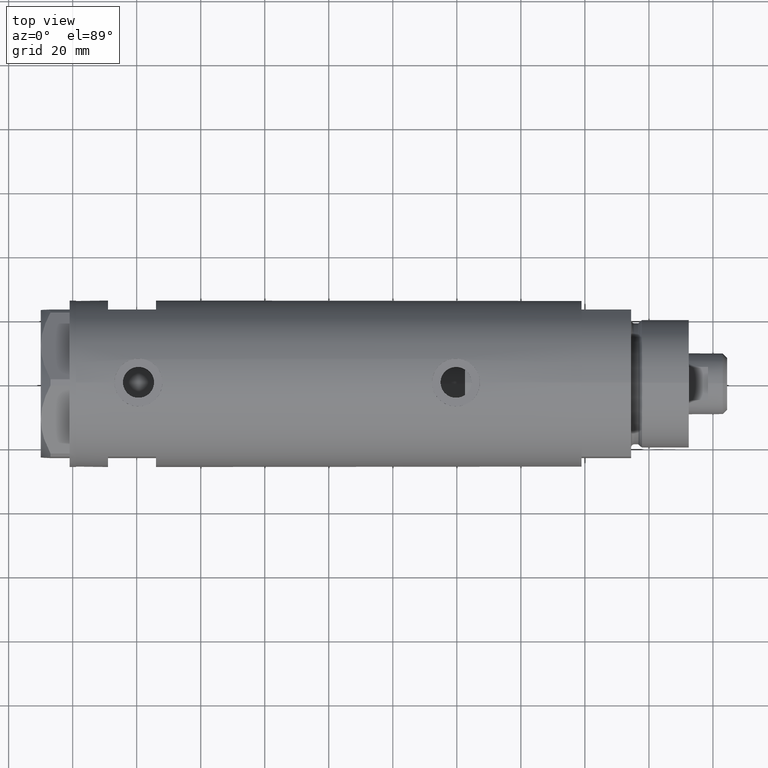
[diagram: clean part render]
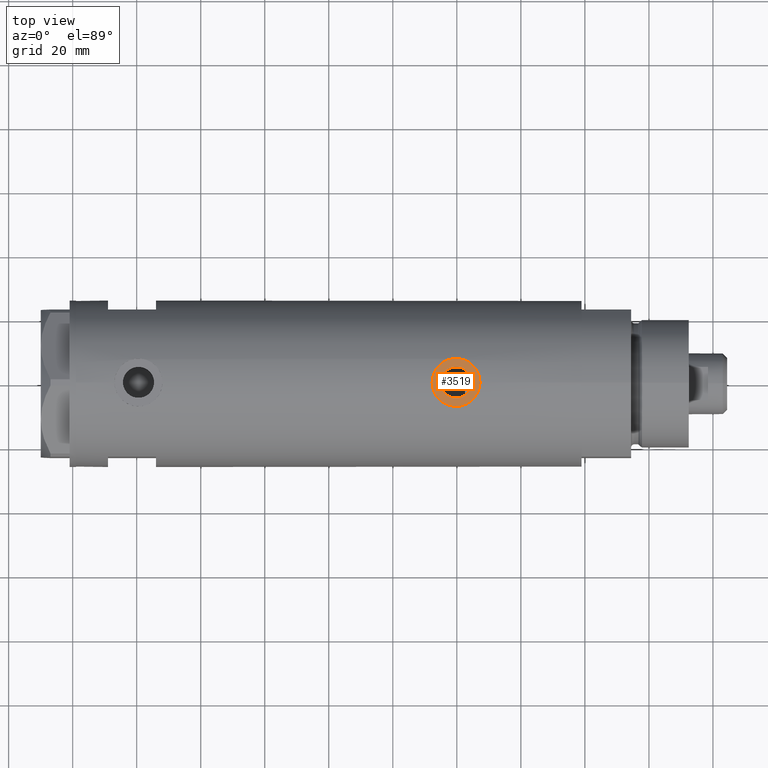
[diagram: same view with one face highlighted and labeled with its STEP entity id]
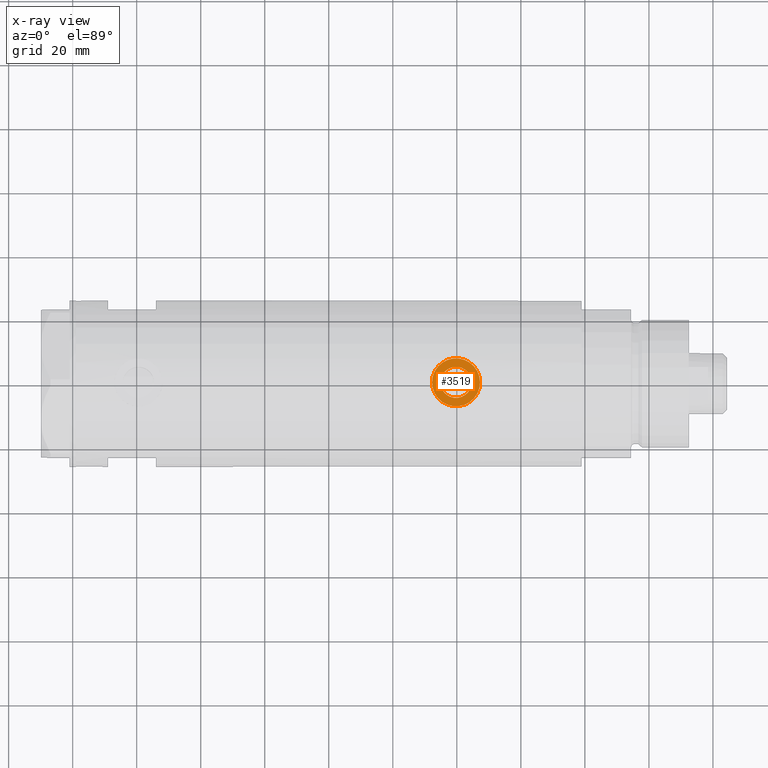
[diagram: x-ray of the same camera — body ghosted, the highlighted face saturated]
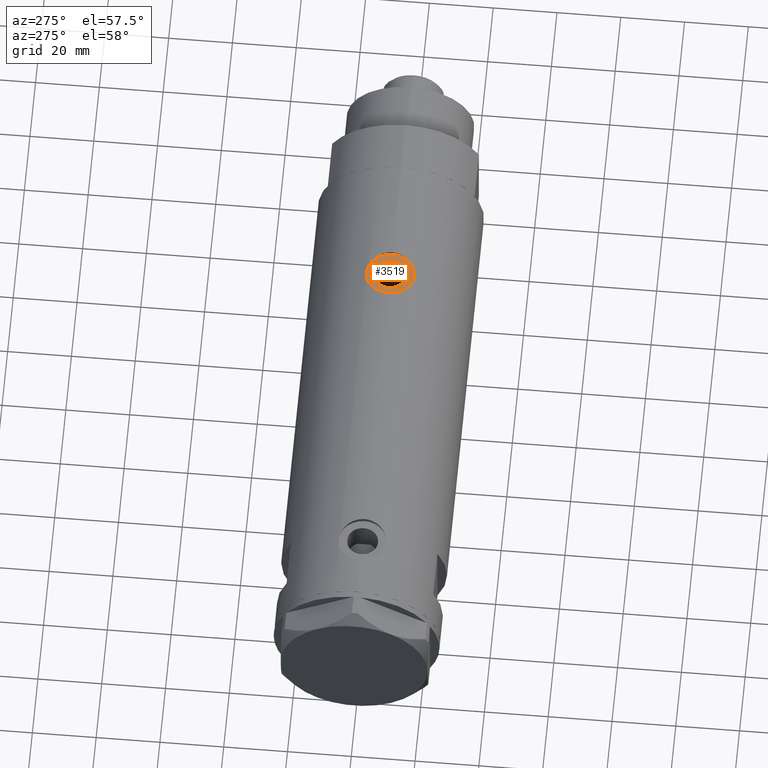
[diagram: same view with one face highlighted and labeled with its STEP entity id]
A machine part, top view. The second image highlights one B-rep face of the part: STEP entity #3519.
The next image is the same camera in x-ray: the body ghosted, the highlighted face saturated — about 0% of this face is hidden behind the body in this view.
A second angle (auxiliary view) of the same face is appended — the face is thin or edge-on in the first view.
In plain terms, the highlighted planar face has unit normal (0, 0, 1).
Its self-contained STEP definition (entity closure, byte-faithful):
#61 = CARTESIAN_POINT ( 'NONE',  ( 24.80000000000000426, 0.000000000000000000, -44.61500000000000199 ) ) ;
#362 = CIRCLE ( 'NONE', #1536, 7.500000000000000000 ) ;
#532 = CIRCLE ( 'NONE', #4869, 4.865000000000001101 ) ;
#622 = FACE_BOUND ( 'NONE', #2077, .T. ) ;
#710 = DIRECTION ( 'NONE',  ( 0.000000000000000000, 0.000000000000000000, -1.000000000000000000 ) ) ;
#765 = AXIS2_PLACEMENT_3D ( 'NONE', #4332, #3234, #4789 ) ;
#875 = DIRECTION ( 'NONE',  ( 1.000000000000000000, 0.000000000000000000, 0.000000000000000000 ) ) ;
#1298 = ORIENTED_EDGE ( 'NONE', *, *, #2306, .T. ) ;
#1389 = DIRECTION ( 'NONE',  ( 0.000000000000000000, 0.000000000000000000, -1.000000000000000000 ) ) ;
#1536 = AXIS2_PLACEMENT_3D ( 'NONE', #2125, #3630, #1389 ) ;
#1584 = DIRECTION ( 'NONE',  ( 0.000000000000000000, 0.000000000000000000, -1.000000000000000000 ) ) ;
#1649 = VERTEX_POINT ( 'NONE', #2588 ) ;
#1901 = EDGE_LOOP ( 'NONE', ( #3082, #1298 ) ) ;
#2077 = EDGE_LOOP ( 'NONE', ( #4687, #4186 ) ) ;
#2125 = CARTESIAN_POINT ( 'NONE',  ( 24.80000000000000426, 0.000000000000000000, -39.75000000000000000 ) ) ;
#2230 = CARTESIAN_POINT ( 'NONE',  ( 24.80000000000000426, 0.000000000000000000, -47.25000000000000000 ) ) ;
#2256 = CARTESIAN_POINT ( 'NONE',  ( 24.80000000000000426, 0.000000000000000000, -39.75000000000000000 ) ) ;
#2306 = EDGE_CURVE ( 'NONE', #3732, #2828, #362, .T. ) ;
#2320 = DIRECTION ( 'NONE',  ( 1.000000000000000000, 0.000000000000000000, 0.000000000000000000 ) ) ;
#2420 = AXIS2_PLACEMENT_3D ( 'NONE', #2256, #3051, #710 ) ;
#2531 = PLANE ( 'NONE',  #765 ) ;
#2588 = CARTESIAN_POINT ( 'NONE',  ( 24.80000000000000426, 5.957906677851871624E-16, -34.88499999999999801 ) ) ;
#2808 = CARTESIAN_POINT ( 'NONE',  ( 24.80000000000000426, 0.000000000000000000, -39.75000000000000000 ) ) ;
#2828 = VERTEX_POINT ( 'NONE', #2230 ) ;
#3051 = DIRECTION ( 'NONE',  ( 1.000000000000000000, 0.000000000000000000, 0.000000000000000000 ) ) ;
#3082 = ORIENTED_EDGE ( 'NONE', *, *, #3816, .T. ) ;
#3207 = AXIS2_PLACEMENT_3D ( 'NONE', #2808, #875, #1584 ) ;
#3234 = DIRECTION ( 'NONE',  ( 1.000000000000000000, 0.000000000000000000, 0.000000000000000000 ) ) ;
#3288 = FACE_OUTER_BOUND ( 'NONE', #1901, .T. ) ;
#3411 = EDGE_CURVE ( 'NONE', #4064, #1649, #4788, .T. ) ;
#3455 = CIRCLE ( 'NONE', #2420, 7.500000000000000000 ) ;
#3519 = ADVANCED_FACE ( 'NONE', ( #622, #3288 ), #2531, .T. ) ;
#3630 = DIRECTION ( 'NONE',  ( 1.000000000000000000, 0.000000000000000000, 0.000000000000000000 ) ) ;
#3732 = VERTEX_POINT ( 'NONE', #4782 ) ;
#3816 = EDGE_CURVE ( 'NONE', #2828, #3732, #3455, .T. ) ;
#3838 = DIRECTION ( 'NONE',  ( 0.000000000000000000, 0.000000000000000000, -1.000000000000000000 ) ) ;
#3952 = EDGE_CURVE ( 'NONE', #1649, #4064, #532, .T. ) ;
#4064 = VERTEX_POINT ( 'NONE', #61 ) ;
#4186 = ORIENTED_EDGE ( 'NONE', *, *, #3952, .F. ) ;
#4332 = CARTESIAN_POINT ( 'NONE',  ( 24.80000000000000426, 0.000000000000000000, -39.75000000000000000 ) ) ;
#4456 = CARTESIAN_POINT ( 'NONE',  ( 24.80000000000000426, 0.000000000000000000, -39.75000000000000000 ) ) ;
#4687 = ORIENTED_EDGE ( 'NONE', *, *, #3411, .F. ) ;
#4782 = CARTESIAN_POINT ( 'NONE',  ( 24.80000000000000426, 9.184850993605147944E-16, -32.25000000000000000 ) ) ;
#4788 = CIRCLE ( 'NONE', #3207, 4.865000000000001101 ) ;
#4789 = DIRECTION ( 'NONE',  ( 0.000000000000000000, 0.000000000000000000, -1.000000000000000000 ) ) ;
#4869 = AXIS2_PLACEMENT_3D ( 'NONE', #4456, #2320, #3838 ) ;